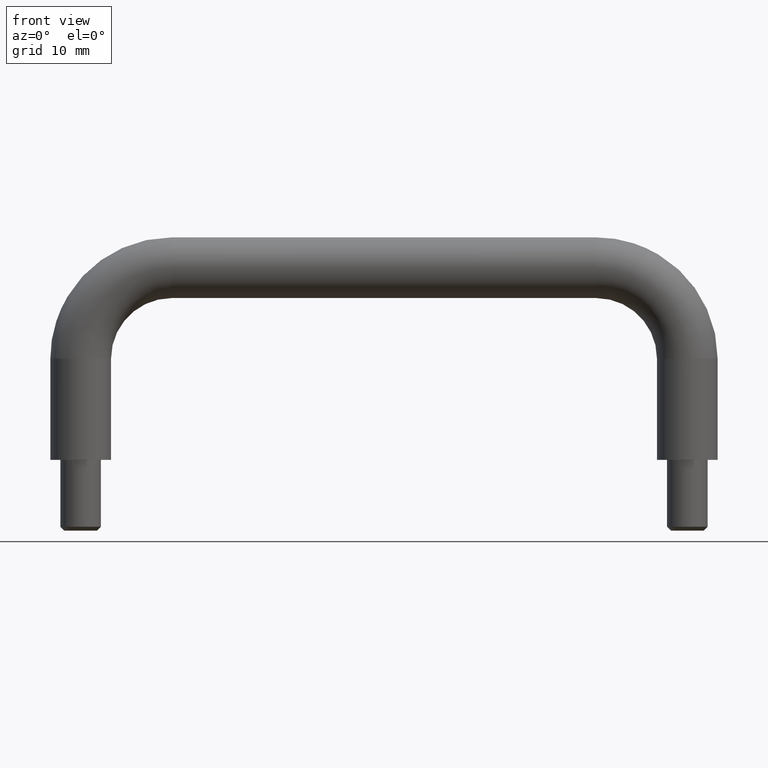
[diagram: clean part render]
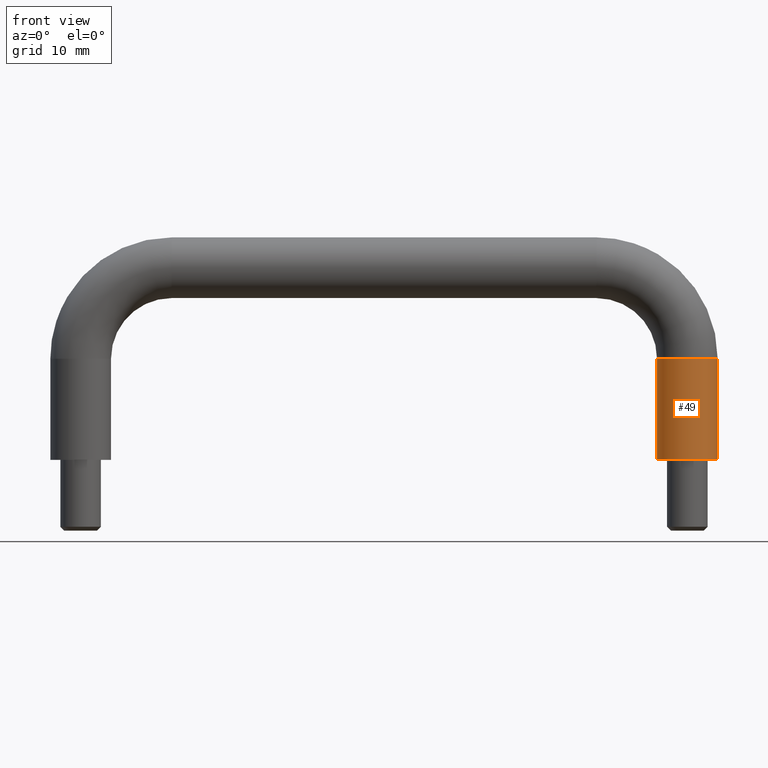
[diagram: same view with one face highlighted and labeled with its STEP entity id]
A machine part, front view. The second image highlights one B-rep face of the part: STEP entity #49.
In plain terms, the highlighted cylindrical surface (edge-blend (fillet) strip) has radius 3 mm, axis along (0, -0, 1).
Its self-contained STEP definition (entity closure, byte-faithful):
#49=ADVANCED_FACE('',(#155),#154,.T.);
#154=CYLINDRICAL_SURFACE('',#514,3.00000000000E+00);
#155=FACE_OUTER_BOUND('',#515,.T.);
#511=CARTESIAN_POINT('',(3.00000000001E+01,0.00000000000E+00,-1.10000000000E+01));
#512=DIRECTION('',(0.00000000000E+00,-0.00000000000E+00,1.00000000000E+00));
#513=DIRECTION('',(1.00000000000E+00,-0.00000000000E+00,-0.00000000000E+00));
#514=AXIS2_PLACEMENT_3D('',#511,#512,#513);
#515=EDGE_LOOP('',(#632,#633,#634,#635));
#632=ORIENTED_EDGE('',*,*,#691,.F.);
#633=ORIENTED_EDGE('',*,*,#708,.T.);
#634=ORIENTED_EDGE('',*,*,#686,.F.);
#635=ORIENTED_EDGE('',*,*,#709,.F.);
#686=EDGE_CURVE('',#734,#741,#742,.T.);
#691=EDGE_CURVE('',#769,#768,#776,.T.);
#708=EDGE_CURVE('',#769,#741,#890,.T.);
#709=EDGE_CURVE('',#768,#734,#896,.T.);
#734=VERTEX_POINT('',#1008);
#741=VERTEX_POINT('',#1013);
#742=CIRCLE('',#1017,3.00000000000E+00);
#768=VERTEX_POINT('',#1033);
#769=VERTEX_POINT('',#1034);
#776=CIRCLE('',#1042,3.00000000000E+00);
#890=(BOUNDED_CURVE() B_SPLINE_CURVE(1,(#1120,#1121),.UNSPECIFIED.,.F.,.F.) B_SPLINE_CURVE_WITH_KNOTS((2,2),(8.33333343261E-02,9.16666667006E-01),.UNSPECIFIED.) CURVE() GEOMETRIC_REPRESENTATION_ITEM() RATIONAL_B_SPLINE_CURVE((1.00000000000E+00,1.00000000000E+00)) REPRESENTATION_ITEM('') );
#896=(BOUNDED_CURVE() B_SPLINE_CURVE(1,(#1122,#1123),.UNSPECIFIED.,.F.,.F.) B_SPLINE_CURVE_WITH_KNOTS((2,2),(8.33333333333E-02,9.16666666667E-01),.UNSPECIFIED.) CURVE() GEOMETRIC_REPRESENTATION_ITEM() RATIONAL_B_SPLINE_CURVE((7.50000000000E-01,7.50000000000E-01)) REPRESENTATION_ITEM('') );
#1008=CARTESIAN_POINT('',(2.70000000001E+01,-1.48029736617E-16,-6.00000000000E+00));
#1013=CARTESIAN_POINT('',(3.30000000001E+01,0.00000000000E+00,-6.00000000000E+00));
#1014=CARTESIAN_POINT('',(3.00000000001E+01,0.00000000000E+00,-6.00000000000E+00));
#1015=DIRECTION('',(0.00000000000E+00,0.00000000000E+00,1.00000000000E+00));
#1016=DIRECTION('',(1.00000000000E+00,4.93432455390E-17,-0.00000000000E+00));
#1017=AXIS2_PLACEMENT_3D('',#1014,#1015,#1016);
#1033=CARTESIAN_POINT('',(2.70000000001E+01,-3.67381906147E-16,-1.60000000000E+01));
#1034=CARTESIAN_POINT('',(3.30000000001E+01,-2.96059473233E-16,-1.60000000000E+01));
#1039=CARTESIAN_POINT('',(3.00000000001E+01,0.00000000000E+00,-1.60000000000E+01));
#1040=DIRECTION('',(0.00000000000E+00,0.00000000000E+00,-1.00000000000E+00));
#1041=DIRECTION('',(-1.00000000000E+00,-0.00000000000E+00,-0.00000000000E+00));
#1042=AXIS2_PLACEMENT_3D('',#1039,#1040,#1041);
#1120=CARTESIAN_POINT('',(3.30000000001E+01,0.00000000000E+00,-1.59999999881E+01));
#1121=CARTESIAN_POINT('',(3.30000000001E+01,0.00000000000E+00,-5.99999999593E+00));
#1122=CARTESIAN_POINT('',(2.70000000001E+01,-1.48029736617E-16,-1.60000000000E+01));
#1123=CARTESIAN_POINT('',(2.70000000001E+01,-1.48029736617E-16,-6.00000000000E+00));